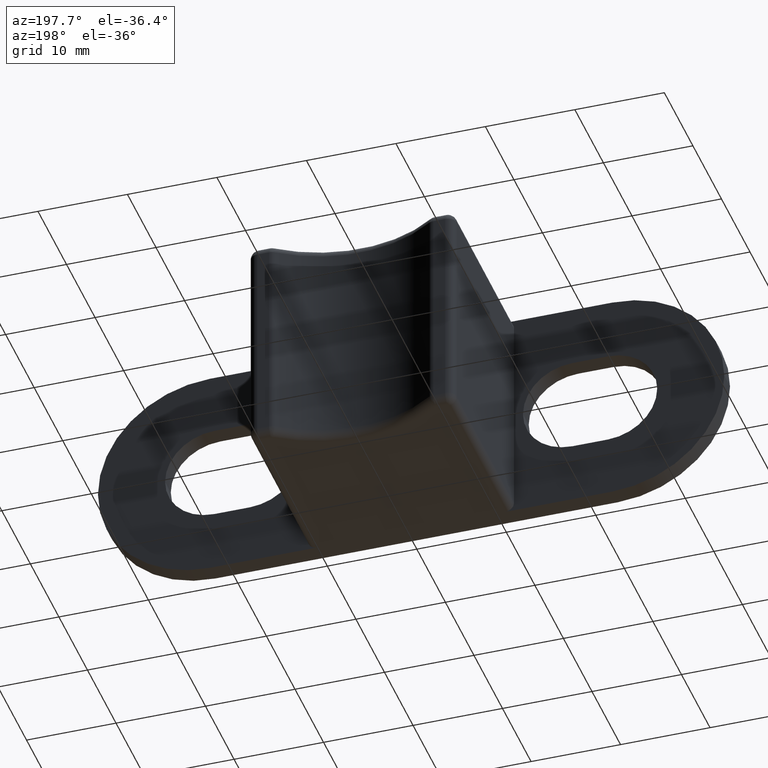
[diagram: clean part render]
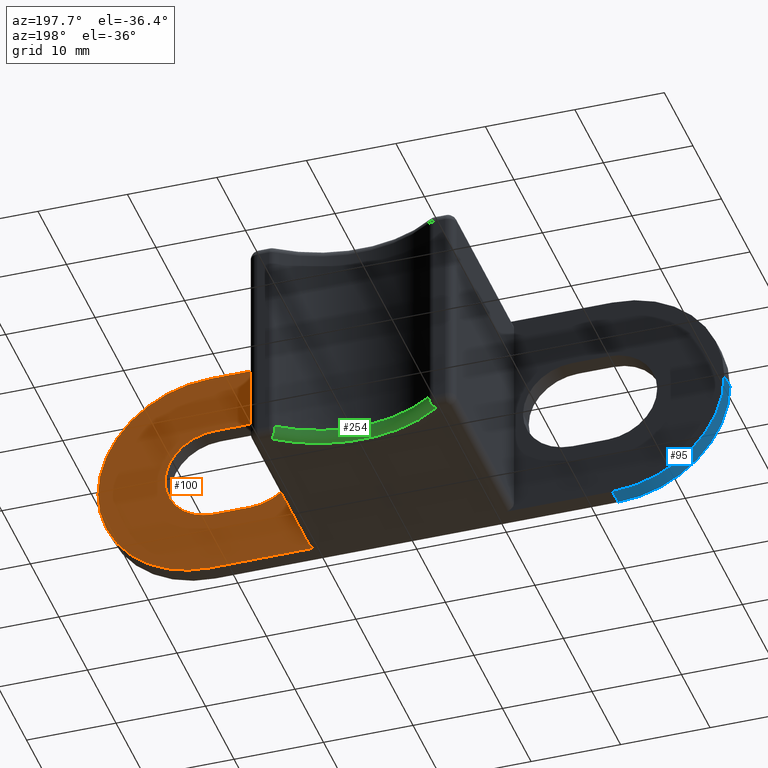
[diagram: same view with three faces highlighted in distinct colors, each labeled with its STEP entity id]
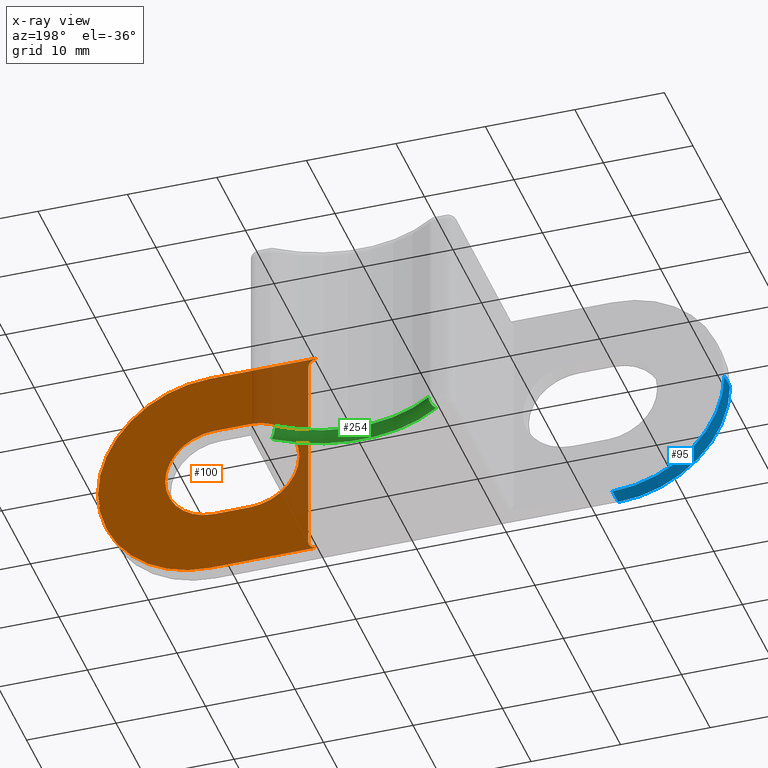
[diagram: x-ray of the same camera — body ghosted, the three highlighted faces saturated]
A machine part, auxiliary view with three faces highlighted in distinct colors.
The next image is the same camera in x-ray (body ghosted, the three faces saturated) — at least one of them is partly hidden behind the body in this view.
Their STEP definitions:

[orange] entity #100 — the highlighted planar face has unit normal (0, 1, 0).
#100 = ADVANCED_FACE( '', ( #337, #338 ), #339, .T. );
#337 = FACE_OUTER_BOUND( '', #735, .T. );
#338 = FACE_BOUND( '', #736, .T. );
#339 = PLANE( '', #737 );
#735 = EDGE_LOOP( '', ( #1389, #1390, #1391, #1392, #1393, #1394, #1395 ) );
#736 = EDGE_LOOP( '', ( #1396, #1397, #1398, #1399, #1400, #1401 ) );
#737 = AXIS2_PLACEMENT_3D( '', #1402, #1403, #1404 );
#1389 = ORIENTED_EDGE( '', *, *, #2558, .F. );
#1390 = ORIENTED_EDGE( '', *, *, #2758, .T. );
#1391 = ORIENTED_EDGE( '', *, *, #2759, .T. );
#1392 = ORIENTED_EDGE( '', *, *, #2739, .T. );
#1393 = ORIENTED_EDGE( '', *, *, #2760, .T. );
#1394 = ORIENTED_EDGE( '', *, *, #2757, .T. );
#1395 = ORIENTED_EDGE( '', *, *, #2761, .T. );
#1396 = ORIENTED_EDGE( '', *, *, #2762, .T. );
#1397 = ORIENTED_EDGE( '', *, *, #2763, .T. );
#1398 = ORIENTED_EDGE( '', *, *, #2764, .T. );
#1399 = ORIENTED_EDGE( '', *, *, #2765, .T. );
#1400 = ORIENTED_EDGE( '', *, *, #2766, .T. );
#1401 = ORIENTED_EDGE( '', *, *, #2767, .T. );
#1402 = CARTESIAN_POINT( '', ( 35.0000000000000, 2.00000000000000, -25.0000000000000 ) );
#1403 = DIRECTION( '', ( 0.000000000000000, 1.00000000000000, 0.000000000000000 ) );
#1404 = DIRECTION( '', ( 1.00000000000000, 0.000000000000000, 0.000000000000000 ) );
#2558 = EDGE_CURVE( '', #3037, #3039, #3040, .T. );
#2739 = EDGE_CURVE( '', #3385, #3383, #3386, .T. );
#2757 = EDGE_CURVE( '', #3409, #3414, #3416, .T. );
#2758 = EDGE_CURVE( '', #3037, #3417, #3418, .T. );
#2759 = EDGE_CURVE( '', #3417, #3385, #3419, .T. );
#2760 = EDGE_CURVE( '', #3383, #3409, #3420, .F. );
#2761 = EDGE_CURVE( '', #3414, #3039, #3421, .F. );
#2762 = EDGE_CURVE( '', #3422, #3423, #3424, .T. );
#2763 = EDGE_CURVE( '', #3423, #3425, #3426, .T. );
#2764 = EDGE_CURVE( '', #3425, #3427, #3428, .T. );
#2765 = EDGE_CURVE( '', #3427, #3429, #3430, .T. );
#2766 = EDGE_CURVE( '', #3429, #3431, #3432, .T. );
#2767 = EDGE_CURVE( '', #3431, #3422, #3433, .T. );
#3037 = VERTEX_POINT( '', #3815 );
#3039 = VERTEX_POINT( '', #3818 );
#3040 = LINE( '', #3819, #3820 );
#3383 = VERTEX_POINT( '', #4303 );
#3385 = VERTEX_POINT( '', #4306 );
#3386 = LINE( '', #4307, #4308 );
#3409 = VERTEX_POINT( '', #4338 );
#3414 = VERTEX_POINT( '', #4345 );
#3416 = LINE( '', #4348, #4349 );
#3417 = VERTEX_POINT( '', #4350 );
#3418 = CIRCLE( '', #4351, 12.5000000000000 );
#3419 = CIRCLE( '', #4352, 12.5000000000000 );
#3420 = CIRCLE( '', #4353, 1.00000000000000 );
#3421 = CIRCLE( '', #4354, 1.00000000000000 );
#3422 = VERTEX_POINT( '', #4355 );
#3423 = VERTEX_POINT( '', #4356 );
#3424 = CIRCLE( '', #4357, 5.50000000000000 );
#3425 = VERTEX_POINT( '', #4358 );
#3426 = CIRCLE( '', #4359, 5.50000000000000 );
#3427 = VERTEX_POINT( '', #4360 );
#3428 = LINE( '', #4361, #4362 );
#3429 = VERTEX_POINT( '', #4363 );
#3430 = CIRCLE( '', #4364, 5.50000000000000 );
#3431 = VERTEX_POINT( '', #4365 );
#3432 = CIRCLE( '', #4366, 5.50000000000000 );
#3433 = LINE( '', #4367, #4368 );
#3815 = CARTESIAN_POINT( '', ( 22.5000000000000, 2.00000000000000, 0.000000000000000 ) );
#3818 = CARTESIAN_POINT( '', ( 10.5000000000000, 2.00000000000000, 0.000000000000000 ) );
#3819 = CARTESIAN_POINT( '', ( 35.0000000000000, 2.00000000000000, 0.000000000000000 ) );
#3820 = VECTOR( '', #4894, 1000.00000000000 );
#4303 = CARTESIAN_POINT( '', ( 10.5000000000000, 2.00000000000000, -25.0000000000000 ) );
#4306 = CARTESIAN_POINT( '', ( 22.5000000000000, 2.00000000000000, -25.0000000000000 ) );
#4307 = CARTESIAN_POINT( '', ( 35.0000000000000, 2.00000000000000, -25.0000000000000 ) );
#4308 = VECTOR( '', #5153, 1000.00000000000 );
#4338 = CARTESIAN_POINT( '', ( 11.5000000000000, 2.00000000000000, -24.0000000000000 ) );
#4345 = CARTESIAN_POINT( '', ( 11.5000000000000, 2.00000000000000, -1.00000000000000 ) );
#4348 = CARTESIAN_POINT( '', ( 11.5000000000000, 2.00000000000000, -25.0000000000000 ) );
#4349 = VECTOR( '', #5185, 1000.00000000000 );
#4350 = CARTESIAN_POINT( '', ( 35.0000000000000, 2.00000000000000, -12.5000000000000 ) );
#4351 = AXIS2_PLACEMENT_3D( '', #5186, #5187, #5188 );
#4352 = AXIS2_PLACEMENT_3D( '', #5189, #5190, #5191 );
#4353 = AXIS2_PLACEMENT_3D( '', #5192, #5193, #5194 );
#4354 = AXIS2_PLACEMENT_3D( '', #5195, #5196, #5197 );
#4355 = CARTESIAN_POINT( '', ( 18.0000000000000, 2.00000200006371, -7.00000000000001 ) );
#4356 = CARTESIAN_POINT( '', ( 12.5000000000000, 2.00000200006371, -12.5000000000000 ) );
#4357 = AXIS2_PLACEMENT_3D( '', #5198, #5199, #5200 );
#4358 = CARTESIAN_POINT( '', ( 18.0000000000000, 2.00000200006371, -18.0000000000000 ) );
#4359 = AXIS2_PLACEMENT_3D( '', #5201, #5202, #5203 );
#4360 = CARTESIAN_POINT( '', ( 22.0000000000000, 2.00000200006371, -18.0000000000000 ) );
#4361 = CARTESIAN_POINT( '', ( 18.0000000000000, 2.00000200006371, -18.0000000000000 ) );
#4362 = VECTOR( '', #5204, 1000.00000000000 );
#4363 = CARTESIAN_POINT( '', ( 27.5000000000000, 2.00000200006371, -12.5000000000000 ) );
#4364 = AXIS2_PLACEMENT_3D( '', #5205, #5206, #5207 );
#4365 = CARTESIAN_POINT( '', ( 22.0000000000000, 2.00000200006371, -7.00000000000001 ) );
#4366 = AXIS2_PLACEMENT_3D( '', #5208, #5209, #5210 );
#4367 = CARTESIAN_POINT( '', ( 22.0000000000000, 2.00000200006371, -7.00000000000001 ) );
#4368 = VECTOR( '', #5211, 1000.00000000000 );
#4894 = DIRECTION( '', ( -1.00000000000000, 0.000000000000000, 0.000000000000000 ) );
#5153 = DIRECTION( '', ( -1.00000000000000, 0.000000000000000, 0.000000000000000 ) );
#5185 = DIRECTION( '', ( 0.000000000000000, 0.000000000000000, 1.00000000000000 ) );
#5186 = CARTESIAN_POINT( '', ( 22.5000000000000, 2.00000000000000, -12.5000000000000 ) );
#5187 = DIRECTION( '', ( 0.000000000000000, 1.00000000000000, 0.000000000000000 ) );
#5188 = DIRECTION( '', ( 0.000000000000000, 0.000000000000000, 1.00000000000000 ) );
#5189 = CARTESIAN_POINT( '', ( 22.5000000000000, 2.00000000000000, -12.5000000000000 ) );
#5190 = DIRECTION( '', ( 0.000000000000000, 1.00000000000000, 0.000000000000000 ) );
#5191 = DIRECTION( '', ( 0.000000000000000, 0.000000000000000, 1.00000000000000 ) );
#5192 = CARTESIAN_POINT( '', ( 10.5000000000000, 2.00000000000000, -24.0000000000000 ) );
#5193 = DIRECTION( '', ( 0.000000000000000, 1.00000000000000, 0.000000000000000 ) );
#5194 = DIRECTION( '', ( 0.000000000000000, 0.000000000000000, 1.00000000000000 ) );
#5195 = CARTESIAN_POINT( '', ( 10.5000000000000, 2.00000000000000, -1.00000000000000 ) );
#5196 = DIRECTION( '', ( 0.000000000000000, 1.00000000000000, 0.000000000000000 ) );
#5197 = DIRECTION( '', ( 0.000000000000000, 0.000000000000000, 1.00000000000000 ) );
#5198 = CARTESIAN_POINT( '', ( 18.0000000000000, 2.00000200006371, -12.5000000000000 ) );
#5199 = DIRECTION( '', ( 0.000000000000000, -1.00000000000000, 0.000000000000000 ) );
#5200 = DIRECTION( '', ( -5.72984420852946E-016, 0.000000000000000, 1.00000000000000 ) );
#5201 = CARTESIAN_POINT( '', ( 18.0000000000000, 2.00000200006371, -12.5000000000000 ) );
#5202 = DIRECTION( '', ( 0.000000000000000, -1.00000000000000, 0.000000000000000 ) );
#5203 = DIRECTION( '', ( -1.00000000000000, 0.000000000000000, 5.78241158658935E-017 ) );
#5204 = DIRECTION( '', ( 1.00000000000000, 0.000000000000000, -5.78241158658936E-017 ) );
#5205 = CARTESIAN_POINT( '', ( 22.0000000000000, 2.00000200006371, -12.5000000000000 ) );
#5206 = DIRECTION( '', ( 0.000000000000000, -1.00000000000000, 0.000000000000000 ) );
#5207 = DIRECTION( '', ( -5.78241158658935E-017, 0.000000000000000, -1.00000000000000 ) );
#5208 = CARTESIAN_POINT( '', ( 22.0000000000000, 2.00000200006371, -12.5000000000000 ) );
#5209 = DIRECTION( '', ( 0.000000000000000, -1.00000000000000, 0.000000000000000 ) );
#5210 = DIRECTION( '', ( 1.00000000000000, 0.000000000000000, 9.98780183138162E-017 ) );
#5211 = DIRECTION( '', ( -1.00000000000000, 0.000000000000000, 5.78241158658936E-017 ) );

[blue] entity #95 — the highlighted cylindrical surface (partial cylindrical patch) has radius 12.5 mm, axis along (0, 1, 0).
#95 = ADVANCED_FACE( '', ( #326 ), #327, .T. );
#326 = FACE_OUTER_BOUND( '', #724, .T. );
#327 = CYLINDRICAL_SURFACE( '', #725, 12.5000000000000 );
#724 = EDGE_LOOP( '', ( #1339, #1340, #1341, #1342 ) );
#725 = AXIS2_PLACEMENT_3D( '', #1343, #1344, #1345 );
#1339 = ORIENTED_EDGE( '', *, *, #2732, .F. );
#1340 = ORIENTED_EDGE( '', *, *, #2733, .F. );
#1341 = ORIENTED_EDGE( '', *, *, #2734, .F. );
#1342 = ORIENTED_EDGE( '', *, *, #2631, .F. );
#1343 = CARTESIAN_POINT( '', ( -22.5000000000000, 2.00000000000000, -12.5000000000000 ) );
#1344 = DIRECTION( '', ( 6.93889390390723E-017, 1.00000000000000, 0.000000000000000 ) );
#1345 = DIRECTION( '', ( 1.00000000000000, -6.93889390390723E-017, 0.000000000000000 ) );
#2631 = EDGE_CURVE( '', #3182, #3184, #3185, .T. );
#2732 = EDGE_CURVE( '', #3372, #3182, #3373, .T. );
#2733 = EDGE_CURVE( '', #3374, #3372, #3375, .T. );
#2734 = EDGE_CURVE( '', #3184, #3374, #3376, .F. );
#3182 = VERTEX_POINT( '', #4027 );
#3184 = VERTEX_POINT( '', #4029 );
#3185 = CIRCLE( '', #4030, 12.5000000000000 );
#3372 = VERTEX_POINT( '', #4288 );
#3373 = LINE( '', #4289, #4290 );
#3374 = VERTEX_POINT( '', #4291 );
#3375 = CIRCLE( '', #4292, 12.5000000000000 );
#3376 = LINE( '', #4293, #4294 );
#4027 = CARTESIAN_POINT( '', ( -35.0000000000000, 0.000000000000000, -12.5000000000000 ) );
#4029 = CARTESIAN_POINT( '', ( -22.5000000000000, 0.000000000000000, -25.0000000000000 ) );
#4030 = AXIS2_PLACEMENT_3D( '', #4981, #4982, #4983 );
#4288 = CARTESIAN_POINT( '', ( -35.0000000000000, 2.00000000000000, -12.5000000000000 ) );
#4289 = CARTESIAN_POINT( '', ( -35.0000000000000, 2.00000000000000, -12.5000000000000 ) );
#4290 = VECTOR( '', #5142, 1000.00000000000 );
#4291 = CARTESIAN_POINT( '', ( -22.5000000000000, 2.00000000000000, -25.0000000000000 ) );
#4292 = AXIS2_PLACEMENT_3D( '', #5143, #5144, #5145 );
#4293 = CARTESIAN_POINT( '', ( -22.5000000000000, 34.5400000000000, -25.0000000000000 ) );
#4294 = VECTOR( '', #5146, 1000.00000000000 );
#4981 = CARTESIAN_POINT( '', ( -22.5000000000000, 0.000000000000000, -12.5000000000000 ) );
#4982 = DIRECTION( '', ( 0.000000000000000, -1.00000000000000, 0.000000000000000 ) );
#4983 = DIRECTION( '', ( 0.000000000000000, 0.000000000000000, -1.00000000000000 ) );
#5142 = DIRECTION( '', ( -6.93889390390723E-017, -1.00000000000000, 0.000000000000000 ) );
#5143 = CARTESIAN_POINT( '', ( -22.5000000000000, 2.00000000000000, -12.5000000000000 ) );
#5144 = DIRECTION( '', ( 0.000000000000000, 1.00000000000000, 0.000000000000000 ) );
#5145 = DIRECTION( '', ( 0.000000000000000, 0.000000000000000, 1.00000000000000 ) );
#5146 = DIRECTION( '', ( -6.93889390390723E-017, -1.00000000000000, 0.000000000000000 ) );

[green] entity #254 — the highlighted toroidal blend (fillet) surface has major radius 15.54 mm and minor (blend) radius 1 mm.
#254 = ADVANCED_FACE( '', ( #646 ), #647, .T. );
#646 = FACE_OUTER_BOUND( '', #1044, .T. );
#647 = TOROIDAL_SURFACE( '', #1045, 15.5400000000000, 1.00000000000000 );
#1044 = EDGE_LOOP( '', ( #2487, #2488, #2489, #2490 ) );
#1045 = AXIS2_PLACEMENT_3D( '', #2491, #2492, #2493 );
#2487 = ORIENTED_EDGE( '', *, *, #2999, .T. );
#2488 = ORIENTED_EDGE( '', *, *, #2736, .F. );
#2489 = ORIENTED_EDGE( '', *, *, #2711, .F. );
#2490 = ORIENTED_EDGE( '', *, *, #2773, .F. );
#2491 = CARTESIAN_POINT( '', ( -1.73472347597681E-015, 34.5400000000000, -24.0000000000000 ) );
#2492 = DIRECTION( '', ( 0.000000000000000, 0.000000000000000, -1.00000000000000 ) );
#2493 = DIRECTION( '', ( -1.00000000000000, 0.000000000000000, 0.000000000000000 ) );
#2711 = EDGE_CURVE( '', #3329, #3323, #3331, .T. );
#2736 = EDGE_CURVE( '', #3323, #3379, #3380, .F. );
#2773 = EDGE_CURVE( '', #3441, #3329, #3443, .T. );
#2999 = EDGE_CURVE( '', #3441, #3379, #3761, .F. );
#3323 = VERTEX_POINT( '', #4229 );
#3329 = VERTEX_POINT( '', #4237 );
#3331 = CIRCLE( '', #4239, 1.00000000000000 );
#3379 = VERTEX_POINT( '', #4298 );
#3380 = CIRCLE( '', #4299, 15.5400000000000 );
#3441 = VERTEX_POINT( '', #4379 );
#3443 = CIRCLE( '', #4382, 14.5400000000000 );
#3761 = CIRCLE( '', #4871, 1.00000000000000 );
#4229 = CARTESIAN_POINT( '', ( -9.17823512446706, 22.0000000000000, -25.0000000000000 ) );
#4237 = CARTESIAN_POINT( '', ( -8.58761510358754, 22.8069498069498, -24.0000000000000 ) );
#4239 = AXIS2_PLACEMENT_3D( '', #5095, #5096, #5097 );
#4298 = CARTESIAN_POINT( '', ( 9.17823512446705, 22.0000000000000, -25.0000000000000 ) );
#4299 = AXIS2_PLACEMENT_3D( '', #5148, #5149, #5150 );
#4379 = CARTESIAN_POINT( '', ( 8.58761510358754, 22.8069498069498, -24.0000000000000 ) );
#4382 = AXIS2_PLACEMENT_3D( '', #5219, #5220, #5221 );
#4871 = AXIS2_PLACEMENT_3D( '', #5555, #5556, #5557 );
#5095 = CARTESIAN_POINT( '', ( -9.17823512446701, 22.0000000000000, -24.0000000000000 ) );
#5096 = DIRECTION( '', ( -0.806949806949807, 0.590620020879474, 5.58623900217495E-014 ) );
#5097 = DIRECTION( '', ( -0.590620020879473, -0.806949806949807, 0.000000000000000 ) );
#5148 = CARTESIAN_POINT( '', ( -1.73472347597681E-015, 34.5400000000000, -25.0000000000000 ) );
#5149 = DIRECTION( '', ( 0.000000000000000, 0.000000000000000, -1.00000000000000 ) );
#5150 = DIRECTION( '', ( -1.00000000000000, 0.000000000000000, 0.000000000000000 ) );
#5219 = CARTESIAN_POINT( '', ( -1.73472347597681E-015, 34.5400000000000, -24.0000000000000 ) );
#5220 = DIRECTION( '', ( 0.000000000000000, 0.000000000000000, -1.00000000000000 ) );
#5221 = DIRECTION( '', ( -1.00000000000000, 0.000000000000000, 0.000000000000000 ) );
#5555 = CARTESIAN_POINT( '', ( 9.17823512446705, 22.0000000000000, -24.0000000000000 ) );
#5556 = DIRECTION( '', ( 0.806949806949775, 0.590620020879517, 0.000000000000000 ) );
#5557 = DIRECTION( '', ( -0.590620020879517, 0.806949806949775, 0.000000000000000 ) );